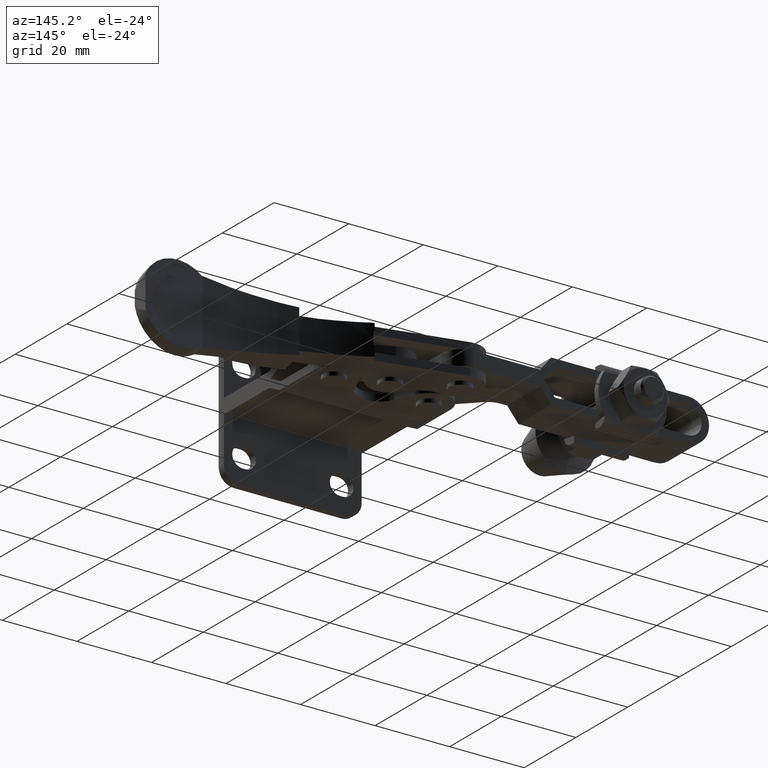
[diagram: clean part render]
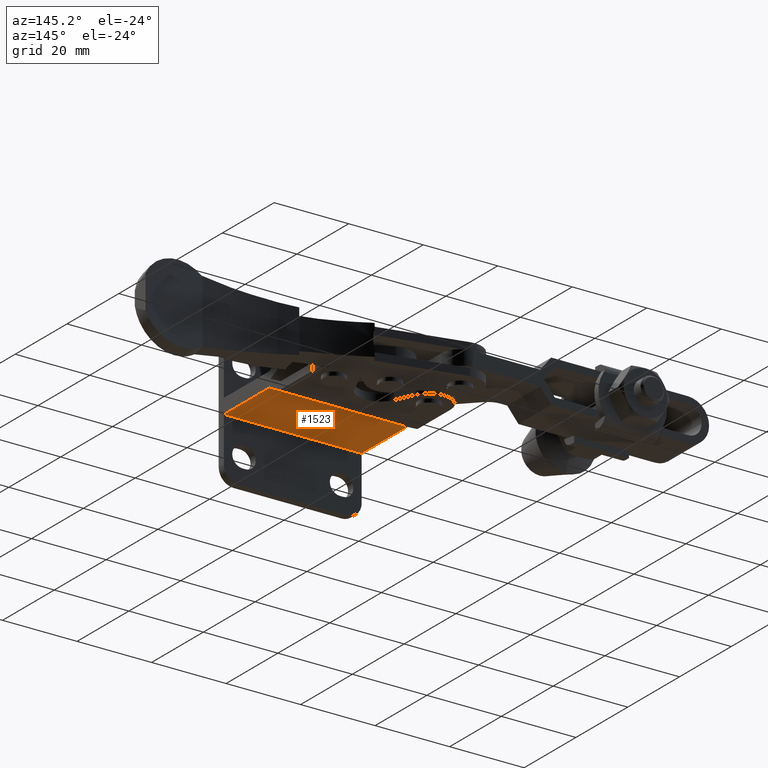
[diagram: same view with one face highlighted and labeled with its STEP entity id]
A machine part, auxiliary view. The second image highlights one B-rep face of the part: STEP entity #1523.
In plain terms, the highlighted planar face has unit normal (-0, 0, 1).
Its self-contained STEP definition (entity closure, byte-faithful):
#528 = VECTOR ( 'NONE', #9708, 1000.000000000000000 ) ;
#718 = LINE ( 'NONE', #5977, #3788 ) ;
#725 = ORIENTED_EDGE ( 'NONE', *, *, #7219, .F. ) ;
#1315 = VERTEX_POINT ( 'NONE', #9031 ) ;
#1523 = ADVANCED_FACE ( 'NONE', ( #6345 ), #6412, .F. ) ;
#1587 = ORIENTED_EDGE ( 'NONE', *, *, #9958, .T. ) ;
#1847 = CARTESIAN_POINT ( 'NONE',  ( -2.151057110211240800E-013, -14.51999999999991600, -3.999999999999852600 ) ) ;
#2112 = ORIENTED_EDGE ( 'NONE', *, *, #8741, .F. ) ;
#3318 = EDGE_CURVE ( 'NONE', #7847, #1315, #3592, .T. ) ;
#3592 = LINE ( 'NONE', #6826, #9281 ) ;
#3788 = VECTOR ( 'NONE', #5176, 1000.000000000000000 ) ;
#4221 = LINE ( 'NONE', #8722, #528 ) ;
#4515 = VECTOR ( 'NONE', #5113, 1000.000000000000000 ) ;
#4597 = DIRECTION ( 'NONE',  ( -1.000000000000000000, 1.739407229361944200E-014, 1.132551960120163700E-017 ) ) ;
#4649 = AXIS2_PLACEMENT_3D ( 'NONE', #6046, #5420, #5447 ) ;
#5113 = DIRECTION ( 'NONE',  ( -1.744958344485069600E-014, -1.000000000000000000, 6.624616534528225500E-015 ) ) ;
#5176 = DIRECTION ( 'NONE',  ( -1.744958344485069600E-014, -1.000000000000000000, 6.624616534528225500E-015 ) ) ;
#5420 = DIRECTION ( 'NONE',  ( -9.496232879352914700E-019, 6.624616534528225500E-015, 1.000000000000000000 ) ) ;
#5447 = DIRECTION ( 'NONE',  ( 1.744958344485069600E-014, 1.000000000000000000, -6.624616534528225500E-015 ) ) ;
#5484 = VERTEX_POINT ( 'NONE', #5700 ) ;
#5698 = LINE ( 'NONE', #5802, #4515 ) ;
#5700 = CARTESIAN_POINT ( 'NONE',  ( -36.99999999999990800, 3.000000000000630600, -3.999999999999968900 ) ) ;
#5802 = CARTESIAN_POINT ( 'NONE',  ( -37.00000000000021300, -14.49999999999927300, -3.999999999999852600 ) ) ;
#5977 = CARTESIAN_POINT ( 'NONE',  ( -2.151057110211240800E-013, -14.49999999999991800, -3.999999999999852600 ) ) ;
#6046 = CARTESIAN_POINT ( 'NONE',  ( -2.151057110211240800E-013, -14.49999999999991800, -3.999999999999852600 ) ) ;
#6345 = FACE_OUTER_BOUND ( 'NONE', #9831, .T. ) ;
#6412 = PLANE ( 'NONE',  #4649 ) ;
#6435 = CARTESIAN_POINT ( 'NONE',  ( 9.020562075079396900E-014, 2.999999999999988900, -3.999999999999968900 ) ) ;
#6475 = ORIENTED_EDGE ( 'NONE', *, *, #3318, .T. ) ;
#6826 = CARTESIAN_POINT ( 'NONE',  ( -2.151057110211240800E-013, -14.51999999999991600, -3.999999999999852600 ) ) ;
#7219 = EDGE_CURVE ( 'NONE', #8744, #5484, #4221, .T. ) ;
#7847 = VERTEX_POINT ( 'NONE', #1847 ) ;
#8722 = CARTESIAN_POINT ( 'NONE',  ( 9.020562075079396900E-014, 2.999999999999988900, -3.999999999999968900 ) ) ;
#8741 = EDGE_CURVE ( 'NONE', #5484, #1315, #5698, .T. ) ;
#8744 = VERTEX_POINT ( 'NONE', #6435 ) ;
#9031 = CARTESIAN_POINT ( 'NONE',  ( -37.00000000000022000, -14.51999999999927300, -3.999999999999852600 ) ) ;
#9281 = VECTOR ( 'NONE', #4597, 1000.000000000000000 ) ;
#9708 = DIRECTION ( 'NONE',  ( -1.000000000000000000, 1.739407229361944200E-014, 1.132551960120163700E-017 ) ) ;
#9831 = EDGE_LOOP ( 'NONE', ( #2112, #725, #1587, #6475 ) ) ;
#9958 = EDGE_CURVE ( 'NONE', #8744, #7847, #718, .T. ) ;